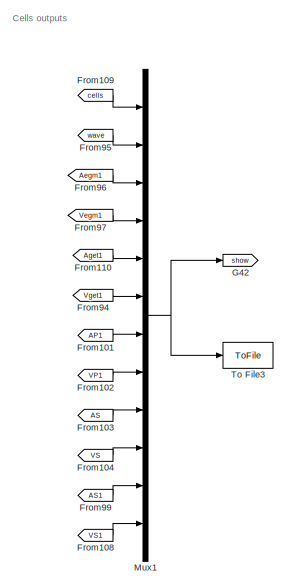
[diagram: root canvas - part 1/2, right side, full height]
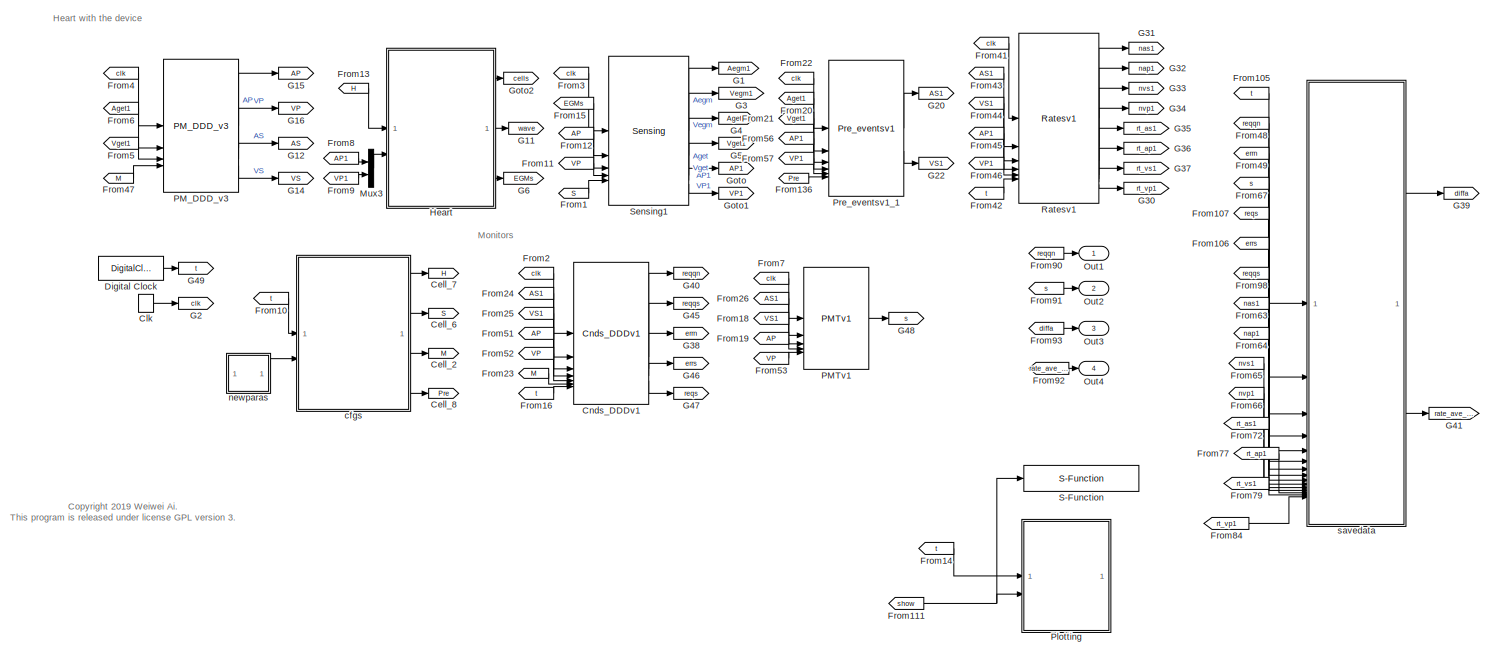
[diagram: root canvas - part 2/2, most of the canvas]
MODEL slx_928784624979
KIND model
CONFIG AbsTol = auto
CONFIG EnableMultiTasking = off
CONFIG FixedStep = 0.0005
CONFIG MaxStep = auto
CONFIG MinStep = auto
CONFIG RelTol = 1e-3
CONFIG SampleTimeConstraint = Unconstrained
CONFIG SolverName = FixedStepAuto
CONFIG StartTime = 0.0
CONFIG StopTime = 4
BLOCK [Goto] Cell_2
  GotoTag = M
BLOCK [Goto] Cell_6
  GotoTag = S
BLOCK [Goto] Cell_7
  GotoTag = H
BLOCK [Goto] Cell_8
  GotoTag = Pre
BLOCK [DiscretePulseGenerator] Clk
  Period = 1
  PulseType = Time based
  PulseWidth = 50
BLOCK [Reference] Cnds_DDDv1  REF=Libs_unified/Cnds_DDDv1
  SourceBlock = Libs_unified/Cnds_DDDv1
  SourceType = SubSystem
BLOCK [DigitalClock] Digital Clock
  SampleTime = stepsize
BLOCK [From] From1
  GotoTag = S
BLOCK [From] From10
  GotoTag = t
BLOCK [From] From101
  GotoTag = AP1
BLOCK [From] From102
  GotoTag = VP1
BLOCK [From] From103
  GotoTag = AS
BLOCK [From] From104
  GotoTag = VS
BLOCK [From] From105
  GotoTag = t
BLOCK [From] From106
  GotoTag = errs
BLOCK [From] From107
  GotoTag = reqs
BLOCK [From] From108
  GotoTag = VS1
BLOCK [From] From109
  GotoTag = cells
BLOCK [From] From11
  GotoTag = VP
BLOCK [From] From110
  GotoTag = Aget1
BLOCK [From] From111
  GotoTag = show
BLOCK [From] From12
  GotoTag = AP
BLOCK [From] From13
  GotoTag = H
BLOCK [From] From136
  GotoTag = Pre
BLOCK [From] From14
  GotoTag = t
BLOCK [From] From15
  GotoTag = EGMs
BLOCK [From] From16
  GotoTag = t
BLOCK [From] From18
  GotoTag = VS1
BLOCK [From] From19
  GotoTag = AP
BLOCK [From] From2
  GotoTag = clk
BLOCK [From] From20
  GotoTag = Aget1
BLOCK [From] From21
  GotoTag = Vget1
BLOCK [From] From22
  GotoTag = clk
BLOCK [From] From23
  GotoTag = M
BLOCK [From] From24
  GotoTag = AS1
BLOCK [From] From25
  GotoTag = VS1
BLOCK [From] From26
  GotoTag = AS1
BLOCK [From] From3
  GotoTag = clk
BLOCK [From] From4
  GotoTag = clk
BLOCK [From] From41
  GotoTag = clk
BLOCK [From] From42
  GotoTag = t
BLOCK [From] From43
  GotoTag = AS1
BLOCK [From] From44
  GotoTag = VS1
BLOCK [From] From45
  GotoTag = AP1
BLOCK [From] From46
  GotoTag = VP1
BLOCK [From] From47
  GotoTag = M
BLOCK [From] From48
  GotoTag = reqqn
BLOCK [From] From49
  GotoTag = errn
BLOCK [From] From5
  GotoTag = Vget1
BLOCK [From] From51
  GotoTag = AP
BLOCK [From] From52
  GotoTag = VP
BLOCK [From] From53
  GotoTag = VP
BLOCK [From] From56
  GotoTag = AP1
BLOCK [From] From57
  GotoTag = VP1
BLOCK [From] From6
  GotoTag = Aget1
BLOCK [From] From63
  GotoTag = nas1
BLOCK [From] From64
  GotoTag = nap1
BLOCK [From] From65
  GotoTag = nvs1
BLOCK [From] From66
  GotoTag = nvp1
BLOCK [From] From67
  GotoTag = s
BLOCK [From] From7
  GotoTag = clk
BLOCK [From] From72
  GotoTag = rt_as1
BLOCK [From] From77
  GotoTag = rt_ap1
BLOCK [From] From79
  GotoTag = rt_vs1
BLOCK [From] From8
  GotoTag = AP1
BLOCK [From] From84
  GotoTag = rt_vp1
BLOCK [From] From9
  GotoTag = VP1
BLOCK [From] From90
  GotoTag = reqqn
BLOCK [From] From91
  GotoTag = s
BLOCK [From] From92
  GotoTag = rate_ave_vp
BLOCK [From] From93
  GotoTag = diffa
BLOCK [From] From94
  GotoTag = Vget1
BLOCK [From] From95
  GotoTag = wave
BLOCK [From] From96
  GotoTag = Aegm1
BLOCK [From] From97
  GotoTag = Vegm1
BLOCK [From] From98
  GotoTag = reqqs
BLOCK [From] From99
  GotoTag = AS1
BLOCK [Goto] G1
  GotoTag = Aegm1
BLOCK [Goto] G11
  GotoTag = wave
BLOCK [Goto] G12
  GotoTag = AS
BLOCK [Goto] G14
  GotoTag = VS
BLOCK [Goto] G15
  GotoTag = AP
BLOCK [Goto] G16
  GotoTag = VP
BLOCK [Goto] G2
  GotoTag = clk
BLOCK [Goto] G20
  GotoTag = AS1
BLOCK [Goto] G22
  GotoTag = VS1
BLOCK [Goto] G3
  GotoTag = Vegm1
BLOCK [Goto] G30
  GotoTag = rt_vp1
BLOCK [Goto] G31
  GotoTag = nas1
BLOCK [Goto] G32
  GotoTag = nap1
BLOCK [Goto] G33
  GotoTag = nvs1
BLOCK [Goto] G34
  GotoTag = nvp1
BLOCK [Goto] G35
  GotoTag = rt_as1
BLOCK [Goto] G36
  GotoTag = rt_ap1
BLOCK [Goto] G37
  GotoTag = rt_vs1
BLOCK [Goto] G38
  GotoTag = errn
BLOCK [Goto] G39
  GotoTag = diffa
BLOCK [Goto] G4
  GotoTag = Aget1
BLOCK [Goto] G40
  GotoTag = reqqn
BLOCK [Goto] G41
  GotoTag = rate_ave_vp
BLOCK [Goto] G42
  GotoTag = show
BLOCK [Goto] G45
  GotoTag = reqqs
BLOCK [Goto] G46
  GotoTag = errs
BLOCK [Goto] G47
  GotoTag = reqs
BLOCK [Goto] G48
  GotoTag = s
BLOCK [Goto] G49
  GotoTag = t
BLOCK [Goto] G5
  GotoTag = Vget1
BLOCK [Goto] G6
  GotoTag = EGMs
BLOCK [Goto] Goto
  GotoTag = AP1
BLOCK [Goto] Goto1
  GotoTag = VP1
BLOCK [Goto] Goto2
  GotoTag = cells
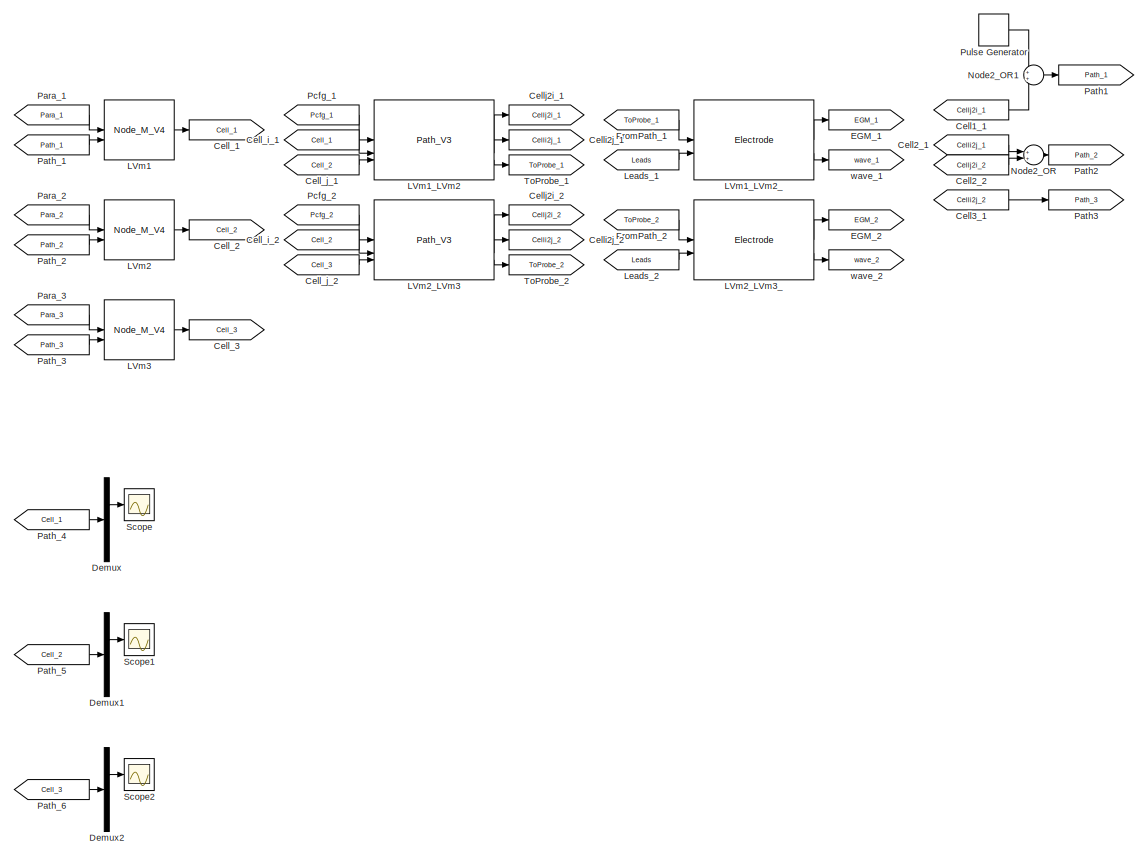
[diagram: Heart - part 1/2, most of the canvas]
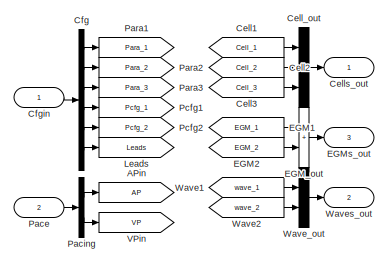
[diagram: Heart - part 2/2, top right region]
BLOCK [SubSystem] Heart
BLOCK [Goto] Heart/APin
  GotoTag = AP
BLOCK [From] Heart/Cell1
  GotoTag = Cell_1
BLOCK [From] Heart/Cell1_1
  GotoTag = Cellj2i_1
BLOCK [From] Heart/Cell2
  GotoTag = Cell_2
BLOCK [From] Heart/Cell2_1
  GotoTag = Celli2j_1
BLOCK [From] Heart/Cell2_2
  GotoTag = Cellj2i_2
BLOCK [From] Heart/Cell3
  GotoTag = Cell_3
BLOCK [From] Heart/Cell3_1
  GotoTag = Celli2j_2
BLOCK [Goto] Heart/Cell_1
  GotoTag = Cell_1
BLOCK [Goto] Heart/Cell_2
  GotoTag = Cell_2
BLOCK [Goto] Heart/Cell_3
  GotoTag = Cell_3
BLOCK [From] Heart/Cell_i_1
  GotoTag = Cell_1
BLOCK [From] Heart/Cell_i_2
  GotoTag = Cell_2
BLOCK [From] Heart/Cell_j_1
  GotoTag = Cell_2
BLOCK [From] Heart/Cell_j_2
  GotoTag = Cell_3
BLOCK [Mux] Heart/Cell_out
  DisplayOption = bar
  Inputs = 3
BLOCK [Goto] Heart/Celli2j_1
  GotoTag = Celli2j_1
BLOCK [Goto] Heart/Celli2j_2
  GotoTag = Celli2j_2
BLOCK [Goto] Heart/Cellj2i_1
  GotoTag = Cellj2i_1
BLOCK [Goto] Heart/Cellj2i_2
  GotoTag = Cellj2i_2
BLOCK [Outport] Heart/Cells_out
BLOCK [Demux] Heart/Cfg
  Outputs = [25,25,25,11,11,28]
BLOCK [Inport] Heart/Cfgin
BLOCK [Demux] Heart/Demux
  Outputs = 5
BLOCK [Demux] Heart/Demux1
  Outputs = 5
BLOCK [Demux] Heart/Demux2
  Outputs = 5
BLOCK [From] Heart/EGM1
  GotoTag = EGM_1
BLOCK [From] Heart/EGM2
  GotoTag = EGM_2
BLOCK [Goto] Heart/EGM_1
  GotoTag = EGM_1
BLOCK [Goto] Heart/EGM_2
  GotoTag = EGM_2
BLOCK [Sum] Heart/EGM_out
  IconShape = rectangular
  Inputs = 2
BLOCK [Outport] Heart/EGMs_out
  Port = 3
BLOCK [From] Heart/FromPath_1
  GotoTag = ToProbe_1
BLOCK [From] Heart/FromPath_2
  GotoTag = ToProbe_2
BLOCK [Reference] Heart/LVm1  REF=Libs/Node_M_V4
  SourceBlock = Libs/Node_M_V4
  SourceType = SubSystem
BLOCK [Reference] Heart/LVm1_LVm2  REF=Libs/Path_V3
  SourceBlock = Libs/Path_V3
  SourceType = SubSystem
BLOCK [Reference] Heart/LVm1_LVm2_  REF=Libs/Electrode
  SourceBlock = Libs/Electrode
  SourceType = SubSystem
BLOCK [Reference] Heart/LVm2  REF=Libs/Node_M_V4
  SourceBlock = Libs/Node_M_V4
  SourceType = SubSystem
BLOCK [Reference] Heart/LVm2_LVm3  REF=Libs/Path_V3
  SourceBlock = Libs/Path_V3
  SourceType = SubSystem
BLOCK [Reference] Heart/LVm2_LVm3_  REF=Libs/Electrode
  SourceBlock = Libs/Electrode
  SourceType = SubSystem
BLOCK [Reference] Heart/LVm3  REF=Libs/Node_M_V4
  SourceBlock = Libs/Node_M_V4
  SourceType = SubSystem
BLOCK [Goto] Heart/Leads
  GotoTag = Leads
BLOCK [From] Heart/Leads_1
  GotoTag = Leads
BLOCK [From] Heart/Leads_2
  GotoTag = Leads
BLOCK [Sum] Heart/Node2_OR
  Inputs = 2
BLOCK [Sum] Heart/Node2_OR1
  Inputs = 2
BLOCK [Inport] Heart/Pace
  Port = 2
BLOCK [Demux] Heart/Pacing
  Outputs = 2
BLOCK [Goto] Heart/Para1
  GotoTag = Para_1
BLOCK [Goto] Heart/Para2
  GotoTag = Para_2
BLOCK [Goto] Heart/Para3
  GotoTag = Para_3
BLOCK [From] Heart/Para_1
  GotoTag = Para_1
BLOCK [From] Heart/Para_2
  GotoTag = Para_2
BLOCK [From] Heart/Para_3
  GotoTag = Para_3
BLOCK [Goto] Heart/Path1
  GotoTag = Path_1
BLOCK [Goto] Heart/Path2
  GotoTag = Path_2
BLOCK [Goto] Heart/Path3
  GotoTag = Path_3
BLOCK [From] Heart/Path_1
  GotoTag = Path_1
BLOCK [From] Heart/Path_2
  GotoTag = Path_2
BLOCK [From] Heart/Path_3
  GotoTag = Path_3
BLOCK [From] Heart/Path_4
  GotoTag = Cell_1
BLOCK [From] Heart/Path_5
  GotoTag = Cell_2
BLOCK [From] Heart/Path_6
  GotoTag = Cell_3
BLOCK [Goto] Heart/Pcfg1
  GotoTag = Pcfg_1
BLOCK [Goto] Heart/Pcfg2
  GotoTag = Pcfg_2
BLOCK [From] Heart/Pcfg_1
  GotoTag = Pcfg_1
BLOCK [From] Heart/Pcfg_2
  GotoTag = Pcfg_2
BLOCK [DiscretePulseGenerator] Heart/Pulse Generator
  Amplitude = 120
  Period = PulsePeriod
  PulseType = Time based
  PulseWidth = 20
BLOCK [Scope] Heart/Scope
  DataLogging = on
  Floating = off
  GraphicalSettings = {"Style":{"BackgroundColor":[0.12941176470588237,0.12941176470588237,0.12941176470588237],"AxesColor":[0.07058823529411765,0.07058823529411765,0.07058823529411765],"LabelsColor":[0.8509803921568627,0.8509803921568627,0.8509803921568627],"PreserveColors":false,"Visible":[true,true,true,true,true,true,true],"LineStyle":["-","-","-","-","-","-","-"],"LineWidth":[1.5,1.5,1.5,1.5,1.5,1.5,1.5],"BarWidth...<+2481ch>
  NumInputPorts = 1
  ScopeFrameLocation = window
  WasSavedAsWebScope = on
  WindowPosition = [573.000000,323.000000,560.000000,420.000000,]
BLOCK [Scope] Heart/Scope1
  DataLogging = on
  DataLoggingVariableName = ScopeData1
  Floating = off
  GraphicalSettings = {"Style":{"BackgroundColor":[0.12941176470588237,0.12941176470588237,0.12941176470588237],"AxesColor":[0.07058823529411765,0.07058823529411765,0.07058823529411765],"LabelsColor":[0.8509803921568627,0.8509803921568627,0.8509803921568627],"PreserveColors":false,"Visible":[true,true,true,true,true,true,true],"LineStyle":["-","-","-","-","-","-","-"],"LineWidth":[1.5,1.5,1.5,1.5,1.5,1.5,1.5],"BarWidth...<+2483ch>
  NumInputPorts = 1
  ScopeFrameLocation = window
  WasSavedAsWebScope = on
  WindowPosition = [573.000000,323.000000,560.000000,420.000000,]
BLOCK [Scope] Heart/Scope2
  DataLogging = on
  DataLoggingVariableName = ScopeData2
  Floating = off
  GraphicalSettings = {"Style":{"BackgroundColor":[0.12941176470588237,0.12941176470588237,0.12941176470588237],"AxesColor":[0.07058823529411765,0.07058823529411765,0.07058823529411765],"LabelsColor":[0.8509803921568627,0.8509803921568627,0.8509803921568627],"PreserveColors":false,"Visible":[true,true,true,true,true,true,true],"LineStyle":["-","-","-","-","-","-","-"],"LineWidth":[1.5,1.5,1.5,1.5,1.5,1.5,1.5],"BarWidth...<+2483ch>
  NumInputPorts = 1
  ScopeFrameLocation = window
  WasSavedAsWebScope = on
  WindowPosition = [573.000000,323.000000,560.000000,420.000000,]
BLOCK [Goto] Heart/ToProbe_1
  GotoTag = ToProbe_1
BLOCK [Goto] Heart/ToProbe_2
  GotoTag = ToProbe_2
BLOCK [Goto] Heart/VPin
  GotoTag = VP
BLOCK [From] Heart/Wave1
  GotoTag = wave_1
BLOCK [From] Heart/Wave2
  GotoTag = wave_2
BLOCK [Mux] Heart/Wave_out
  DisplayOption = bar
  Inputs = 2
BLOCK [Outport] Heart/Waves_out
  Port = 2
BLOCK [Goto] Heart/wave_1
  GotoTag = wave_1
BLOCK [Goto] Heart/wave_2
  GotoTag = wave_2
BLOCK [Mux] Mux1
  DisplayOption = bar
  Inputs = 12
BLOCK [Mux] Mux3
  DisplayOption = bar
  Inputs = 2
BLOCK [Outport] Out1
BLOCK [Outport] Out2
  Port = 2
BLOCK [Outport] Out3
  Port = 3
BLOCK [Outport] Out4
  Port = 4
BLOCK [Reference] PMTv1  REF=Libs_unified/PMTv1
  SourceBlock = Libs_unified/PMTv1
  SourceType = SubSystem
BLOCK [Reference] PM_DDD_v3  REF=Libs_unified/PM_DDD_v3
  SourceBlock = Libs_unified/PM_DDD_v3
  SourceType = SubSystem
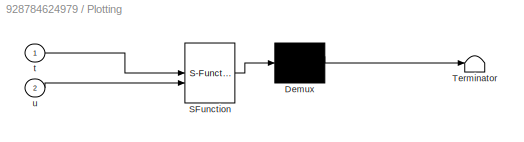
BLOCK [SubSystem] Plotting
  ErrorFcn = Stateflow.Translate.translate
  PermitHierarchicalResolution = ExplicitOnly
  SFBlockType = MATLAB Function
  SystemSampleTime = stepsize*5
  TreatAsAtomicUnit = on
BLOCK [Demux] Plotting/ Demux 
  Outputs = 1
BLOCK [S-Function] Plotting/ SFunction 
  EnableBusSupport = off
  FunctionName = sf_sfun
  PortCounts = [2 1]
  SFcnIsStateOwnerBlock = off
  SFunctionDeploymentMode = off
  Tag = Stateflow S-Function 2
BLOCK [Terminator] Plotting/ Terminator 
BLOCK [Inport] Plotting/t
BLOCK [Inport] Plotting/u
  Port = 2
BLOCK [Reference] Pre_eventsv1_1  REF=Libs_unified/Pre_eventsv1
  SourceBlock = Libs_unified/Pre_eventsv1
  SourceType = SubSystem
BLOCK [Reference] Ratesv1  REF=Libs_unified/Ratesv1
  SourceBlock = Libs_unified/Ratesv1
  SourceType = SubSystem
BLOCK [S-Function] S-Function
  Commented = on
  EnableBusSupport = off
  FunctionName = SaveTrace_sfcn
  Parameters = 1
  SFcnIsStateOwnerBlock = off
  SFunctionDeploymentMode = off
BLOCK [Reference] Sensing1  REF=Libs_unified/Sensing
  SourceBlock = Libs_unified/Sensing
  SourceType = SubSystem
BLOCK [ToFile] To File3
  Decimation = 2
  Filename = Cells1.mat
  MatrixName = cells
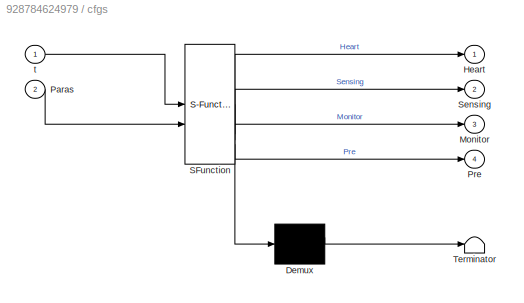
BLOCK [SubSystem] cfgs
  ErrorFcn = Stateflow.Translate.translate
  PermitHierarchicalResolution = ExplicitOnly
  SFBlockType = Chart
  TreatAsAtomicUnit = on
BLOCK [Demux] cfgs/ Demux 
  Outputs = 1
BLOCK [S-Function] cfgs/ SFunction 
  EnableBusSupport = off
  FunctionName = sf_sfun
  Parameters = AVI,LRI,PVARP,URI,VRP,cfg_length,pNode_length,pPath_length
  PortCounts = [2 5]
  SFcnIsStateOwnerBlock = off
  SFunctionDeploymentMode = off
  Tag = Stateflow S-Function 1
BLOCK [Terminator] cfgs/ Terminator 
BLOCK [Outport] cfgs/Heart
BLOCK [Outport] cfgs/Monitor
  Port = 3
BLOCK [Inport] cfgs/Paras
  Port = 2
BLOCK [Outport] cfgs/Pre
  Port = 4
BLOCK [Outport] cfgs/Sensing
  Port = 2
BLOCK [Inport] cfgs/t
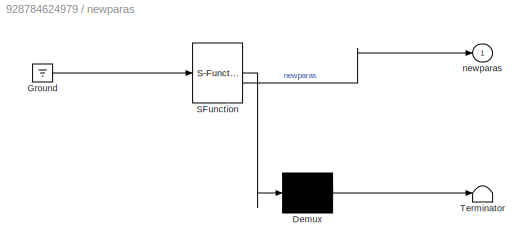
BLOCK [SubSystem] newparas
  ErrorFcn = Stateflow.Translate.translate
  PermitHierarchicalResolution = ExplicitOnly
  SFBlockType = MATLAB Function
  TreatAsAtomicUnit = on
BLOCK [Demux] newparas/ Demux 
  Outputs = 1
BLOCK [Ground] newparas/ Ground 
BLOCK [S-Function] newparas/ SFunction 
  EnableBusSupport = off
  FunctionName = sf_sfun
  Parameters = paras_length
  PortCounts = [1 2]
  SFcnIsStateOwnerBlock = off
  SFunctionDeploymentMode = off
  Tag = Stateflow S-Function 4
BLOCK [Terminator] newparas/ Terminator 
BLOCK [Outport] newparas/newparas
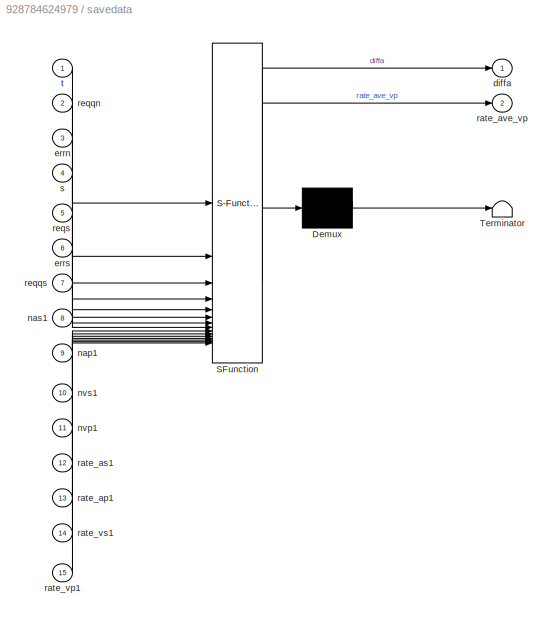
BLOCK [SubSystem] savedata
  ErrorFcn = Stateflow.Translate.translate
  PermitHierarchicalResolution = ExplicitOnly
  SFBlockType = Chart
  TreatAsAtomicUnit = on
BLOCK [Demux] savedata/ Demux 
  Outputs = 1
BLOCK [S-Function] savedata/ SFunction 
  EnableBusSupport = off
  FunctionName = sf_sfun
  PortCounts = [15 3]
  SFcnIsStateOwnerBlock = off
  SFunctionDeploymentMode = off
  Tag = Stateflow S-Function 6
BLOCK [Terminator] savedata/ Terminator 
BLOCK [Outport] savedata/diffa
BLOCK [Inport] savedata/errn
  Port = 3
BLOCK [Inport] savedata/errs
  Port = 6
BLOCK [Inport] savedata/nap1
  Port = 9
BLOCK [Inport] savedata/nas1
  Port = 8
BLOCK [Inport] savedata/nvp1
  Port = 11
BLOCK [Inport] savedata/nvs1
  Port = 10
BLOCK [Inport] savedata/rate_ap1
  Port = 13
BLOCK [Inport] savedata/rate_as1
  Port = 12
BLOCK [Outport] savedata/rate_ave_vp
  Port = 2
BLOCK [Inport] savedata/rate_vp1
  Port = 15
BLOCK [Inport] savedata/rate_vs1
  Port = 14
BLOCK [Inport] savedata/reqqn
  Port = 2
BLOCK [Inport] savedata/reqqs
  Port = 7
BLOCK [Inport] savedata/reqs
  Port = 5
BLOCK [Inport] savedata/s
  Port = 4
BLOCK [Inport] savedata/t
ANNOTATION (root): Cells outputs
ANNOTATION (root): <copyright redacted>
ANNOTATION (root): Heart with the device
ANNOTATION (root): Monitors
LINE Clk:1 -> G2:1
LINE Cnds_DDDv1:1 -> G40:1
LINE Cnds_DDDv1:2 -> G45:1
LINE Cnds_DDDv1:3 -> G38:1
LINE Cnds_DDDv1:4 -> G46:1
LINE Cnds_DDDv1:5 -> G47:1
LINE Digital Clock:1 -> G49:1
LINE From101:1 -> Mux1:7
LINE From102:1 -> Mux1:8
LINE From103:1 -> Mux1:9
LINE From104:1 -> Mux1:10
LINE From105:1 -> savedata:1
LINE From106:1 -> savedata:6
LINE From107:1 -> savedata:5
LINE From108:1 -> Mux1:12
LINE From109:1 -> Mux1:1
LINE From10:1 -> cfgs:1
LINE From110:1 -> Mux1:5
NET From111:1 -> Plotting:2, S-Function:1
LINE From11:1 -> Sensing1:4
LINE From12:1 -> Sensing1:3
LINE From136:1 -> Pre_eventsv1_1:6
LINE From13:1 -> Heart:1
LINE From14:1 -> Plotting:1
LINE From15:1 -> Sensing1:2
LINE From16:1 -> Cnds_DDDv1:7
LINE From18:1 -> PMTv1:3
LINE From19:1 -> PMTv1:4
LINE From1:1 -> Sensing1:5
LINE From20:1 -> Pre_eventsv1_1:2
LINE From21:1 -> Pre_eventsv1_1:3
LINE From22:1 -> Pre_eventsv1_1:1
LINE From23:1 -> Cnds_DDDv1:6
LINE From24:1 -> Cnds_DDDv1:2
LINE From25:1 -> Cnds_DDDv1:3
LINE From26:1 -> PMTv1:2
LINE From2:1 -> Cnds_DDDv1:1
LINE From3:1 -> Sensing1:1
LINE From41:1 -> Ratesv1:1
LINE From42:1 -> Ratesv1:6
LINE From43:1 -> Ratesv1:2
LINE From44:1 -> Ratesv1:3
LINE From45:1 -> Ratesv1:4
LINE From46:1 -> Ratesv1:5
LINE From47:1 -> PM_DDD_v3:4
LINE From48:1 -> savedata:2
LINE From49:1 -> savedata:3
LINE From4:1 -> PM_DDD_v3:1
LINE From51:1 -> Cnds_DDDv1:4
LINE From52:1 -> Cnds_DDDv1:5
LINE From53:1 -> PMTv1:5
LINE From56:1 -> Pre_eventsv1_1:4
LINE From57:1 -> Pre_eventsv1_1:5
LINE From5:1 -> PM_DDD_v3:3
LINE From63:1 -> savedata:8
LINE From64:1 -> savedata:9
LINE From65:1 -> savedata:10
LINE From66:1 -> savedata:11
LINE From67:1 -> savedata:4
LINE From6:1 -> PM_DDD_v3:2
LINE From72:1 -> savedata:12
LINE From77:1 -> savedata:13
LINE From79:1 -> savedata:14
LINE From7:1 -> PMTv1:1
LINE From84:1 -> savedata:15
LINE From8:1 -> Mux3:1
LINE From90:1 -> Out1:1
LINE From91:1 -> Out2:1
LINE From92:1 -> Out4:1
LINE From93:1 -> Out3:1
LINE From94:1 -> Mux1:6
LINE From95:1 -> Mux1:2
LINE From96:1 -> Mux1:3
LINE From97:1 -> Mux1:4
LINE From98:1 -> savedata:7
LINE From99:1 -> Mux1:11
LINE From9:1 -> Mux3:2
LINE Heart/Cell1:1 -> Heart/Cell_out:1
LINE Heart/Cell1_1:1 -> Heart/Node2_OR1:2
LINE Heart/Cell2:1 -> Heart/Cell_out:2
LINE Heart/Cell2_1:1 -> Heart/Node2_OR:1
LINE Heart/Cell2_2:1 -> Heart/Node2_OR:2
LINE Heart/Cell3:1 -> Heart/Cell_out:3
LINE Heart/Cell3_1:1 -> Heart/Path3:1
LINE Heart/Cell_i_1:1 -> Heart/LVm1_LVm2:2
LINE Heart/Cell_i_2:1 -> Heart/LVm2_LVm3:2
LINE Heart/Cell_j_1:1 -> Heart/LVm1_LVm2:3
LINE Heart/Cell_j_2:1 -> Heart/LVm2_LVm3:3
LINE Heart/Cell_out:1 -> Heart/Cells_out:1
LINE Heart/Cfg:1 -> Heart/Para1:1
LINE Heart/Cfg:2 -> Heart/Para2:1
LINE Heart/Cfg:3 -> Heart/Para3:1
LINE Heart/Cfg:4 -> Heart/Pcfg1:1
LINE Heart/Cfg:5 -> Heart/Pcfg2:1
LINE Heart/Cfg:6 -> Heart/Leads:1
LINE Heart/Cfgin:1 -> Heart/Cfg:1
LINE Heart/Demux1:2 -> Heart/Scope1:1
LINE Heart/Demux2:2 -> Heart/Scope2:1
LINE Heart/Demux:2 -> Heart/Scope:1
LINE Heart/EGM1:1 -> Heart/EGM_out:1
LINE Heart/EGM2:1 -> Heart/EGM_out:2
LINE Heart/EGM_out:1 -> Heart/EGMs_out:1
LINE Heart/FromPath_1:1 -> Heart/LVm1_LVm2_:1
LINE Heart/FromPath_2:1 -> Heart/LVm2_LVm3_:1
LINE Heart/LVm1:1 -> Heart/Cell_1:1
LINE Heart/LVm1_LVm2:1 -> Heart/Cellj2i_1:1
LINE Heart/LVm1_LVm2:2 -> Heart/Celli2j_1:1
LINE Heart/LVm1_LVm2:3 -> Heart/ToProbe_1:1
LINE Heart/LVm1_LVm2_:1 -> Heart/EGM_1:1
LINE Heart/LVm1_LVm2_:2 -> Heart/wave_1:1
LINE Heart/LVm2:1 -> Heart/Cell_2:1
LINE Heart/LVm2_LVm3:1 -> Heart/Cellj2i_2:1
LINE Heart/LVm2_LVm3:2 -> Heart/Celli2j_2:1
LINE Heart/LVm2_LVm3:3 -> Heart/ToProbe_2:1
LINE Heart/LVm2_LVm3_:1 -> Heart/EGM_2:1
LINE Heart/LVm2_LVm3_:2 -> Heart/wave_2:1
LINE Heart/LVm3:1 -> Heart/Cell_3:1
LINE Heart/Leads_1:1 -> Heart/LVm1_LVm2_:2
LINE Heart/Leads_2:1 -> Heart/LVm2_LVm3_:2
LINE Heart/Node2_OR1:1 -> Heart/Path1:1
LINE Heart/Node2_OR:1 -> Heart/Path2:1
LINE Heart/Pace:1 -> Heart/Pacing:1
LINE Heart/Pacing:1 -> Heart/APin:1
LINE Heart/Pacing:2 -> Heart/VPin:1
LINE Heart/Para_1:1 -> Heart/LVm1:1
LINE Heart/Para_2:1 -> Heart/LVm2:1
LINE Heart/Para_3:1 -> Heart/LVm3:1
LINE Heart/Path_1:1 -> Heart/LVm1:2
LINE Heart/Path_2:1 -> Heart/LVm2:2
LINE Heart/Path_3:1 -> Heart/LVm3:2
LINE Heart/Path_4:1 -> Heart/Demux:1
LINE Heart/Path_5:1 -> Heart/Demux1:1
LINE Heart/Path_6:1 -> Heart/Demux2:1
LINE Heart/Pcfg_1:1 -> Heart/LVm1_LVm2:1
LINE Heart/Pcfg_2:1 -> Heart/LVm2_LVm3:1
LINE Heart/Pulse Generator:1 -> Heart/Node2_OR1:1
LINE Heart/Wave1:1 -> Heart/Wave_out:1
LINE Heart/Wave2:1 -> Heart/Wave_out:2
LINE Heart/Wave_out:1 -> Heart/Waves_out:1
LINE Heart:1 -> Goto2:1
LINE Heart:2 -> G11:1
LINE Heart:3 -> G6:1
NET Mux1:1 -> G42:1, To File3:1
LINE Mux3:1 -> Heart:2
LINE PMTv1:1 -> G48:1
LINE PM_DDD_v3:1 -> G15:1
LINE PM_DDD_v3:2 -> G16:1
LINE PM_DDD_v3:3 -> G12:1
LINE PM_DDD_v3:4 -> G14:1
LINE Pre_eventsv1_1:1 -> G20:1
LINE Pre_eventsv1_1:2 -> G22:1
LINE Ratesv1:1 -> G31:1
LINE Ratesv1:2 -> G32:1
LINE Ratesv1:3 -> G33:1
LINE Ratesv1:4 -> G34:1
LINE Ratesv1:5 -> G35:1
LINE Ratesv1:6 -> G36:1
LINE Ratesv1:7 -> G37:1
LINE Ratesv1:8 -> G30:1
LINE Sensing1:1 -> G1:1
LINE Sensing1:2 -> G3:1
LINE Sensing1:3 -> G4:1
LINE Sensing1:4 -> G5:1
LINE Sensing1:5 -> Goto:1
LINE Sensing1:6 -> Goto1:1
LINE cfgs:1 -> Cell_7:1
LINE cfgs:2 -> Cell_6:1
LINE cfgs:3 -> Cell_2:1
LINE cfgs:4 -> Cell_8:1
LINE newparas:1 -> cfgs:2
LINE savedata:1 -> G39:1
LINE savedata:2 -> G41:1
note: NET lines group one-source signal fan-out (src -> all destinations, sorted); 1:1 wires keep LINE
CHART cfgs states=6 transitions=2
  STATE_LABEL 'Scfg= Scfgf'
  STATE_LABEL "SCRIPT:\nfunction Scfg= Scfgf\n\n%% desired\nxa=1;\nxc=0.05;\nxc1=0.1;\nxd=1;\nxe=0.1;\navd=100;\nvad=100;\nuni_a=1;\nSens_a=0.6;\nAmp_ap=500;\nuni_v=1;\nSens_v=2.8;\nAmp_vp=500;\n\nScfg=[xa xc xc1 xd xe avd vad uni_a Sens_a Amp_ap uni_v Sens_v Amp_vp]';\n\nend"
  STATE_LABEL '[Mcfg,Preout]= Precfg'
  STATE_LABEL 'SCRIPT:\nfunction [Mcfg,Preout]= Precfg\n% \n% LRI=1000;\n% AVI=170;\n% URI=500;\n% VRP=230;\n% PVARP=250;\nMcfg=[LRI AVI URI VRP PVARP];\nPreout=[VRP PVARP];\n\nend'
  STATE_LABEL 'pUpdate(Parasin)'
  STATE_LABEL "SCRIPT:\n%% Get the index of the parameter\nfunction pUpdate(Parasin)\n%#codegen\ncoder.extrinsic('evalin');\ncoder.extrinsic('assignin');\nNodein=zeros(1,pNode_length); % The total number of cell cfg ports\nNodein=evalin('base', 'pNode');\nPathin=zeros(1,pPath_length); % The total number of path cfg ports\nPathin=evalin('base', 'pPath');\nfor n=1:pNode_length\n    m=Nodein(n);\n    Heart(m)=Parasin(n);\nend\n\n...<+135ch>"
  STATE_LABEL 'Hcfg   = LoadInit'
  STATE_LABEL "SCRIPT:\nfunction Hcfg   = LoadInit\n%#codegen\ncoder.extrinsic('evalin');\nHcfg1=zeros(1,cfg_length); % The total number of cfg ports\nHcfg1=evalin('base', 'cfgdata');\nHcfg=Hcfg1';\nend\n"
  STATE_LABEL 'Ini'
  STATE_LABEL 'wait'
CHART Plotting states=1 transitions=1
  STATE_LABEL 'eML_blk_kernel()'
  STATE_LABEL "SCRIPT:\nfunction fcn(t,u)\n%coder.extrinsic('evalin')\ncoder.extrinsic('updateGUIplots')\nfun = 'updateGUIplots';\nupdateGUIplots(t,u)\n%feval(fun,t,u)\nend\n"
CHART newparas states=1 transitions=1
  STATE_LABEL 'eML_blk_kernel()'
  STATE_LABEL "SCRIPT:\n\nfunction newparas= auto(paras_length)\n\ncoder.extrinsic('evalin');\n%par_length = evalin('base','paras_length')\nnewparas=zeros(1,paras_length); % The total number of cell cfg ports\nnewparas=evalin('base', 'pp');\n\nend"
CHART savedata states=3 transitions=5
  STATE_LABEL 'termi'
  STATE_LABEL 'difa'
  STATE_LABEL 'Ini'
CHART  states=0 transitions=0
CHART  states=0 transitions=0
CHART  states=0 transitions=0
CHART  states=0 transitions=0
